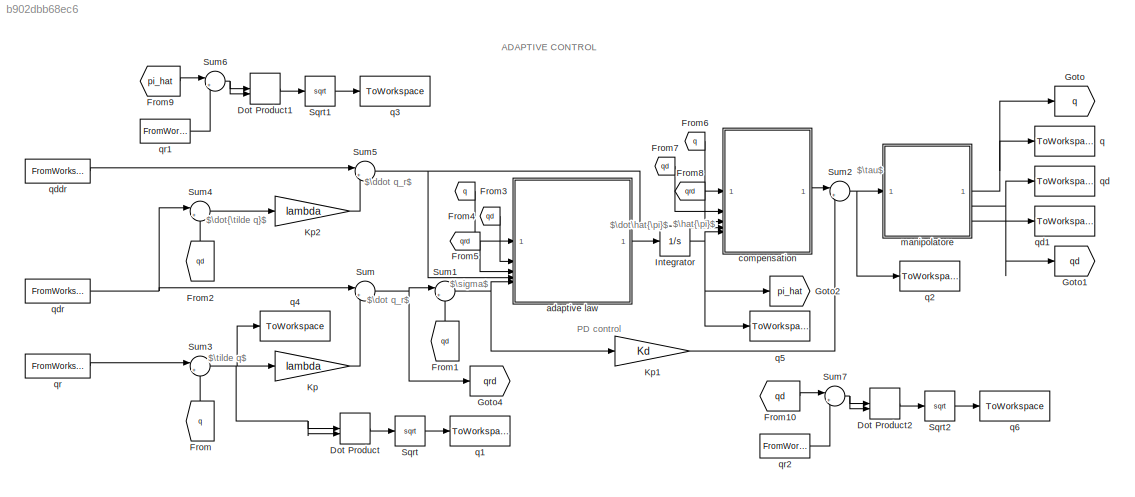
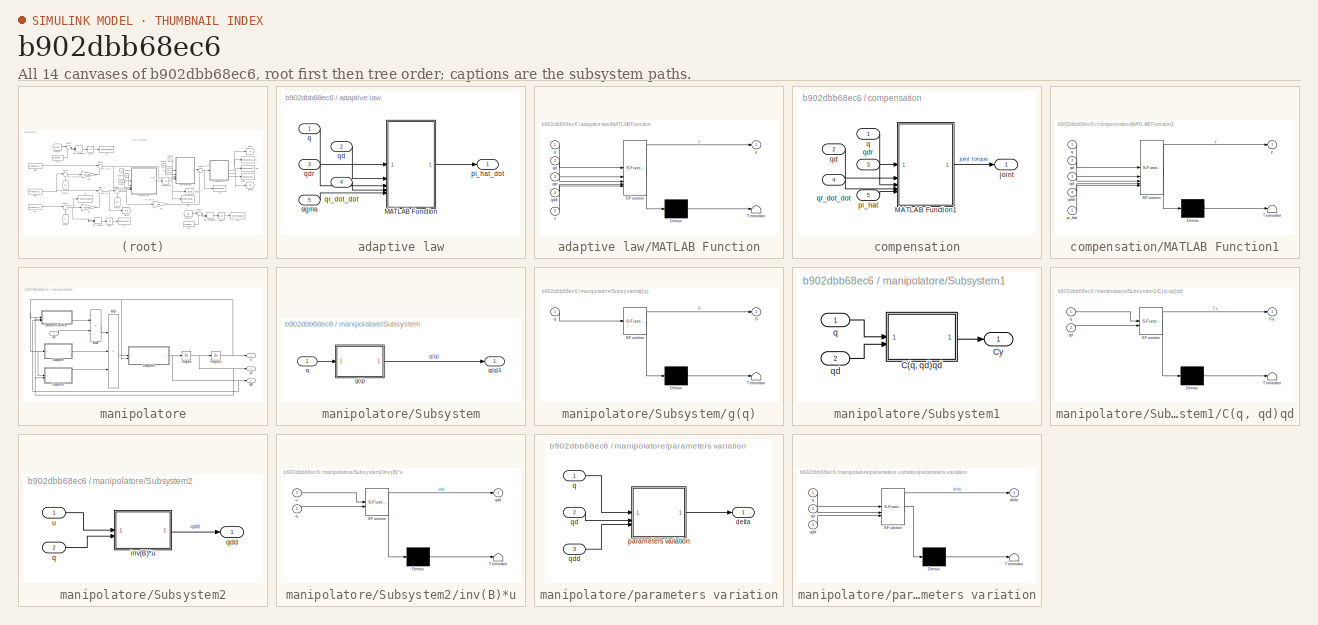
[diagram: thumbnail index - all 14 canvases of the model, root first then tree order]
MODEL slx_b902dbb68ec6
KIND model
CONFIG AbsTol = auto
CONFIG EnableMultiTasking = on
CONFIG FixedStep = 0.001
CONFIG MaxStep = auto
CONFIG MinStep = auto
CONFIG RelTol = 1e-3
CONFIG SampleTimeConstraint = Unconstrained
CONFIG SolverName = VariableStepAuto
CONFIG StartTime = 0.0
CONFIG StopTime = Tf
BLOCK [DotProduct] Dot Product
  OutDataTypeStr = Inherit: Inherit via internal rule
BLOCK [DotProduct] Dot Product1
  OutDataTypeStr = Inherit: Inherit via internal rule
BLOCK [DotProduct] Dot Product2
  OutDataTypeStr = Inherit: Inherit via internal rule
BLOCK [From] From
  GotoTag = q
  NameLocation = right
  TagVisibility = global
BLOCK [From] From1
  GotoTag = qd
  NameLocation = right
  TagVisibility = global
BLOCK [From] From10
  GotoTag = qd
  TagVisibility = global
BLOCK [From] From2
  GotoTag = qd
  NameLocation = right
  TagVisibility = global
BLOCK [From] From3
  GotoTag = q
  TagVisibility = global
BLOCK [From] From4
  GotoTag = qd
  TagVisibility = global
BLOCK [From] From5
  GotoTag = qrd
BLOCK [From] From6
  GotoTag = q
  TagVisibility = global
BLOCK [From] From7
  GotoTag = qd
  TagVisibility = global
BLOCK [From] From8
  GotoTag = qrd
BLOCK [From] From9
  GotoTag = pi_hat
  TagVisibility = global
BLOCK [Goto] Goto
  GotoTag = q
  TagVisibility = global
BLOCK [Goto] Goto1
  GotoTag = qd
  TagVisibility = global
BLOCK [Goto] Goto2
  GotoTag = pi_hat
  TagVisibility = global
BLOCK [Goto] Goto4
  GotoTag = qrd
BLOCK [Integrator] Integrator
  InitialCondition = pi
BLOCK [Gain] Kp
  Gain = lambda
  Multiplication = Matrix(K*u)
BLOCK [Gain] Kp1
  Gain = Kd
  Multiplication = Matrix(K*u)
BLOCK [Gain] Kp2
  Gain = lambda
  Multiplication = Matrix(K*u)
BLOCK [Sqrt] Sqrt
BLOCK [Sqrt] Sqrt1
BLOCK [Sqrt] Sqrt2
BLOCK [Sum] Sum
  Inputs = |++
BLOCK [Sum] Sum1
  Inputs = |+-
BLOCK [Sum] Sum2
  Inputs = |++
BLOCK [Sum] Sum3
  Inputs = |+-
BLOCK [Sum] Sum4
  Inputs = |+-
BLOCK [Sum] Sum5
  Inputs = |++
BLOCK [Sum] Sum6
  Inputs = |+-
BLOCK [Sum] Sum7
  Inputs = |+-
BLOCK [SubSystem] adaptive law
  ShowPortLabels = none
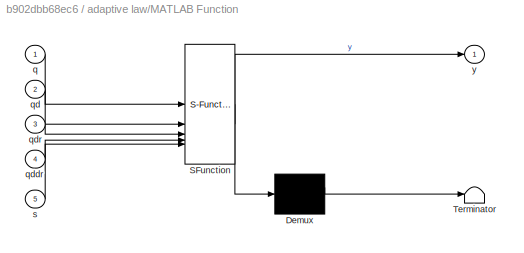
BLOCK [SubSystem] adaptive law/MATLAB Function
  ErrorFcn = Stateflow.Translate.translate
  PermitHierarchicalResolution = ExplicitOnly
  SFBlockType = MATLAB Function
  TreatAsAtomicUnit = on
BLOCK [Demux] adaptive law/MATLAB Function/ Demux 
  Outputs = 1
BLOCK [S-Function] adaptive law/MATLAB Function/ SFunction 
  EnableBusSupport = off
  FunctionName = sf_sfun
  Parameters = Kpi,a1,a2,kr1,kr2
  PortCounts = [5 2]
  SFcnIsStateOwnerBlock = off
  SFunctionDeploymentMode = off
  Tag = Stateflow S-Function 2
BLOCK [Terminator] adaptive law/MATLAB Function/ Terminator 
BLOCK [Inport] adaptive law/MATLAB Function/q
BLOCK [Inport] adaptive law/MATLAB Function/qd
  Port = 2
BLOCK [Inport] adaptive law/MATLAB Function/qddr
  Port = 4
BLOCK [Inport] adaptive law/MATLAB Function/qdr
  Port = 3
BLOCK [Inport] adaptive law/MATLAB Function/s
  Port = 5
BLOCK [Outport] adaptive law/MATLAB Function/y
BLOCK [Outport] adaptive law/pi_hat_dot
BLOCK [Inport] adaptive law/q
BLOCK [Inport] adaptive law/qd
  Port = 2
BLOCK [Inport] adaptive law/qdr
  Port = 3
BLOCK [Inport] adaptive law/qr_dot_dot
  Port = 4
BLOCK [Inport] adaptive law/sigma
  Port = 5
BLOCK [SubSystem] compensation
  ShowPortLabels = none
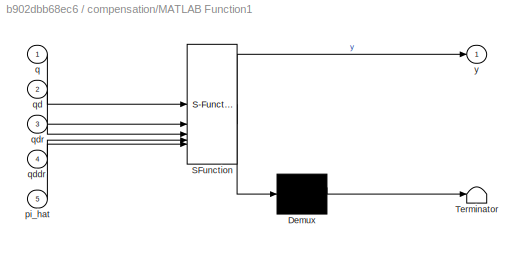
BLOCK [SubSystem] compensation/MATLAB Function1
  ErrorFcn = Stateflow.Translate.translate
  PermitHierarchicalResolution = ExplicitOnly
  SFBlockType = MATLAB Function
  TreatAsAtomicUnit = on
BLOCK [Demux] compensation/MATLAB Function1/ Demux 
  Outputs = 1
BLOCK [S-Function] compensation/MATLAB Function1/ SFunction 
  EnableBusSupport = off
  FunctionName = sf_sfun
  Parameters = a1,a2,kr1,kr2
  PortCounts = [5 2]
  SFcnIsStateOwnerBlock = off
  SFunctionDeploymentMode = off
  Tag = Stateflow S-Function 1
BLOCK [Terminator] compensation/MATLAB Function1/ Terminator 
BLOCK [Inport] compensation/MATLAB Function1/pi_hat
  Port = 5
BLOCK [Inport] compensation/MATLAB Function1/q
BLOCK [Inport] compensation/MATLAB Function1/qd
  Port = 2
BLOCK [Inport] compensation/MATLAB Function1/qddr
  Port = 4
BLOCK [Inport] compensation/MATLAB Function1/qdr
  Port = 3
BLOCK [Outport] compensation/MATLAB Function1/y
BLOCK [Outport] compensation/joint
BLOCK [Inport] compensation/pi_hat
  Port = 5
BLOCK [Inport] compensation/q
BLOCK [Inport] compensation/qd
  Port = 2
BLOCK [Inport] compensation/qdr
  Port = 3
BLOCK [Inport] compensation/qr_dot_dot
  Port = 4
BLOCK [SubSystem] manipolatore
  ShowPortLabels = none
BLOCK [Sum] manipolatore/Add
  IconShape = rectangular
  Inputs = +--
BLOCK [Sum] manipolatore/Add1
  IconShape = rectangular
  Inputs = -+
BLOCK [Integrator] manipolatore/Integrator
  InitialCondition = [0;0]
BLOCK [Integrator] manipolatore/Integrator1
  InitialCondition = qi
BLOCK [SubSystem] manipolatore/Subsystem
  ShowPortLabels = none
BLOCK [SubSystem] manipolatore/Subsystem/g(q)
  ErrorFcn = Stateflow.Translate.translate
  PermitHierarchicalResolution = ExplicitOnly
  SFBlockType = MATLAB Function
  TreatAsAtomicUnit = on
BLOCK [Demux] manipolatore/Subsystem/g(q)/ Demux 
  Outputs = 1
BLOCK [S-Function] manipolatore/Subsystem/g(q)/ SFunction 
  EnableBusSupport = off
  FunctionName = sf_sfun
  PortCounts = [1 2]
  SFcnIsStateOwnerBlock = off
  SFunctionDeploymentMode = off
  Tag = Stateflow S-Function 3
BLOCK [Terminator] manipolatore/Subsystem/g(q)/ Terminator 
BLOCK [Outport] manipolatore/Subsystem/g(q)/G
BLOCK [Inport] manipolatore/Subsystem/g(q)/q
BLOCK [Outport] manipolatore/Subsystem/g(q)1
BLOCK [Inport] manipolatore/Subsystem/q
BLOCK [SubSystem] manipolatore/Subsystem1
  ShowPortLabels = none
BLOCK [SubSystem] manipolatore/Subsystem1/C(q, qd)qd
  ErrorFcn = Stateflow.Translate.translate
  PermitHierarchicalResolution = ExplicitOnly
  SFBlockType = MATLAB Function
  TreatAsAtomicUnit = on
BLOCK [Demux] manipolatore/Subsystem1/C(q, qd)qd/ Demux 
  Outputs = 1
BLOCK [S-Function] manipolatore/Subsystem1/C(q, qd)qd/ SFunction 
  EnableBusSupport = off
  FunctionName = sf_sfun
  PortCounts = [2 2]
  SFcnIsStateOwnerBlock = off
  SFunctionDeploymentMode = off
  Tag = Stateflow S-Function 4
BLOCK [Terminator] manipolatore/Subsystem1/C(q, qd)qd/ Terminator 
BLOCK [Outport] manipolatore/Subsystem1/C(q, qd)qd/Cy
BLOCK [Inport] manipolatore/Subsystem1/C(q, qd)qd/q
BLOCK [Inport] manipolatore/Subsystem1/C(q, qd)qd/qd
  Port = 2
BLOCK [Outport] manipolatore/Subsystem1/Cy
BLOCK [Inport] manipolatore/Subsystem1/q
BLOCK [Inport] manipolatore/Subsystem1/qd
  Port = 2
BLOCK [SubSystem] manipolatore/Subsystem2
  ShowPortLabels = none
BLOCK [SubSystem] manipolatore/Subsystem2/inv(B)*u
  ErrorFcn = Stateflow.Translate.translate
  PermitHierarchicalResolution = ExplicitOnly
  SFBlockType = MATLAB Function
  TreatAsAtomicUnit = on
BLOCK [Demux] manipolatore/Subsystem2/inv(B)*u/ Demux 
  Outputs = 1
BLOCK [S-Function] manipolatore/Subsystem2/inv(B)*u/ SFunction 
  EnableBusSupport = off
  FunctionName = sf_sfun
  PortCounts = [2 2]
  SFcnIsStateOwnerBlock = off
  SFunctionDeploymentMode = off
  Tag = Stateflow S-Function 6
BLOCK [Terminator] manipolatore/Subsystem2/inv(B)*u/ Terminator 
BLOCK [Inport] manipolatore/Subsystem2/inv(B)*u/q
  Port = 2
BLOCK [Outport] manipolatore/Subsystem2/inv(B)*u/qdd
BLOCK [Inport] manipolatore/Subsystem2/inv(B)*u/u
BLOCK [Inport] manipolatore/Subsystem2/q
  Port = 2
BLOCK [Outport] manipolatore/Subsystem2/qdd
BLOCK [Inport] manipolatore/Subsystem2/u
BLOCK [SubSystem] manipolatore/parameters variation
  ShowPortLabels = none
BLOCK [Outport] manipolatore/parameters variation/delta
BLOCK [SubSystem] manipolatore/parameters variation/parameters variation
  ErrorFcn = Stateflow.Translate.translate
  PermitHierarchicalResolution = ExplicitOnly
  SFBlockType = MATLAB Function
  TreatAsAtomicUnit = on
BLOCK [Demux] manipolatore/parameters variation/parameters variation/ Demux 
  Outputs = 1
BLOCK [S-Function] manipolatore/parameters variation/parameters variation/ SFunction 
  EnableBusSupport = off
  FunctionName = sf_sfun
  Parameters = a1,a2,delta_I2hat,delta_m2,delta_m2lc2
  PortCounts = [3 2]
  SFcnIsStateOwnerBlock = off
  SFunctionDeploymentMode = off
  Tag = Stateflow S-Function 9
BLOCK [Terminator] manipolatore/parameters variation/parameters variation/ Terminator 
BLOCK [Outport] manipolatore/parameters variation/parameters variation/delta
BLOCK [Inport] manipolatore/parameters variation/parameters variation/q
BLOCK [Inport] manipolatore/parameters variation/parameters variation/qd
  Port = 2
BLOCK [Inport] manipolatore/parameters variation/parameters variation/qdd
  Port = 3
BLOCK [Inport] manipolatore/parameters variation/q
BLOCK [Inport] manipolatore/parameters variation/qd
  Port = 2
BLOCK [Inport] manipolatore/parameters variation/qdd
  Port = 3
BLOCK [Outport] manipolatore/q
BLOCK [Outport] manipolatore/qd
  Port = 2
BLOCK [Outport] manipolatore/qdd
  Port = 3
BLOCK [Inport] manipolatore/tau
BLOCK [ToWorkspace] q
  FixptAsFi = on
  MaxDataPoints = inf
  SampleTime = Tc
  VariableName = q
BLOCK [ToWorkspace] q1
  FixptAsFi = on
  MaxDataPoints = inf
  SampleTime = Tc
  VariableName = pos_err_norm
BLOCK [ToWorkspace] q2
  FixptAsFi = on
  MaxDataPoints = inf
  SampleTime = Tc
  VariableName = tau
BLOCK [ToWorkspace] q3
  FixptAsFi = on
  MaxDataPoints = inf
  SampleTime = Tc
  VariableName = param_err_norm
BLOCK [ToWorkspace] q4
  FixptAsFi = on
  MaxDataPoints = inf
  SampleTime = Tc
  VariableName = q_tilde
BLOCK [ToWorkspace] q5
  FixptAsFi = on
  MaxDataPoints = inf
  SampleTime = Tc
  VariableName = pi_hat
BLOCK [ToWorkspace] q6
  FixptAsFi = on
  MaxDataPoints = inf
  SampleTime = Tc
  VariableName = vel_err_norm
BLOCK [ToWorkspace] qd
  FixptAsFi = on
  MaxDataPoints = inf
  SampleTime = Tc
  VariableName = qd
BLOCK [ToWorkspace] qd1
  FixptAsFi = on
  MaxDataPoints = inf
  SampleTime = Tc
  VariableName = qdd
BLOCK [FromWorkspace] qddr
  SampleTime = Tc
  VariableName = qddref
BLOCK [FromWorkspace] qdr
  SampleTime = Tc
  VariableName = qdref
BLOCK [FromWorkspace] qr
  SampleTime = Tc
  VariableName = qref
BLOCK [FromWorkspace] qr1
  SampleTime = Tc
  VariableName = pi_t
BLOCK [FromWorkspace] qr2
  SampleTime = Tc
  VariableName = qdref
ANNOTATION (root): ADAPTIVE CONTROL
ANNOTATION (root): $\ddot q_r$
ANNOTATION (root): $\dot q_r$
ANNOTATION (root): $\dot\hat{\pi}$
ANNOTATION (root): $\dot{\tilde q}$
ANNOTATION (root): $\hat{\pi}$
ANNOTATION (root): $\sigma$
ANNOTATION (root): $\tau$
ANNOTATION (root): $\tilde q$
ANNOTATION (root): PD control
LINE Dot Product1:1 -> Sqrt1:1
LINE Dot Product2:1 -> Sqrt2:1
LINE Dot Product:1 -> Sqrt:1
LINE From10:1 -> Sum7:1
LINE From1:1 -> Sum1:2
LINE From2:1 -> Sum4:2
LINE From3:1 -> adaptive law:1
LINE From4:1 -> adaptive law:2
LINE From5:1 -> adaptive law:3
LINE From6:1 -> compensation:1
LINE From7:1 -> compensation:2
LINE From8:1 -> compensation:3
LINE From9:1 -> Sum6:1
LINE From:1 -> Sum3:2
NET Integrator:1 -> Goto2:1, compensation:5, q5:1
LINE Kp1:1 -> Sum2:2
LINE Kp2:1 -> Sum5:2
LINE Kp:1 -> Sum:2
LINE Sqrt1:1 -> q3:1
LINE Sqrt2:1 -> q6:1
LINE Sqrt:1 -> q1:1
NET Sum1:1 -> Kp1:1, adaptive law:5
NET Sum2:1 -> manipolatore:1, q2:1
NET Sum3:1 -> Dot Product:1, Dot Product:2, Kp:1, q4:1
LINE Sum4:1 -> Kp2:1
NET Sum5:1 -> adaptive law:4, compensation:4
NET Sum6:1 -> Dot Product1:1, Dot Product1:2
NET Sum7:1 -> Dot Product2:1, Dot Product2:2
NET Sum:1 -> Goto4:1, Sum1:1
LINE adaptive law/MATLAB Function:1 -> adaptive law/pi_hat_dot:1
LINE adaptive law/q:1 -> adaptive law/MATLAB Function:1
LINE adaptive law/qd:1 -> adaptive law/MATLAB Function:2
LINE adaptive law/qdr:1 -> adaptive law/MATLAB Function:3
LINE adaptive law/qr_dot_dot:1 -> adaptive law/MATLAB Function:4
LINE adaptive law/sigma:1 -> adaptive law/MATLAB Function:5
LINE adaptive law:1 -> Integrator:1
LINE compensation/MATLAB Function1:1 -> compensation/joint:1
LINE compensation/pi_hat:1 -> compensation/MATLAB Function1:5
LINE compensation/q:1 -> compensation/MATLAB Function1:1
LINE compensation/qd:1 -> compensation/MATLAB Function1:2
LINE compensation/qdr:1 -> compensation/MATLAB Function1:3
LINE compensation/qr_dot_dot:1 -> compensation/MATLAB Function1:4
LINE compensation:1 -> Sum2:1
LINE manipolatore/Add1:1 -> manipolatore/Add:1
LINE manipolatore/Add:1 -> manipolatore/Subsystem2:1
NET manipolatore/Integrator1:1 -> manipolatore/Subsystem1:1, manipolatore/Subsystem2:2, manipolatore/Subsystem:1, manipolatore/parameters variation:1, manipolatore/q:1
NET manipolatore/Integrator:1 -> manipolatore/Integrator1:1, manipolatore/Subsystem1:2, manipolatore/parameters variation:2, manipolatore/qd:1
LINE manipolatore/Subsystem/g(q):1 -> manipolatore/Subsystem/g(q)1:1
LINE manipolatore/Subsystem/q:1 -> manipolatore/Subsystem/g(q):1
LINE manipolatore/Subsystem1/C(q, qd)qd:1 -> manipolatore/Subsystem1/Cy:1
LINE manipolatore/Subsystem1/q:1 -> manipolatore/Subsystem1/C(q, qd)qd:1
LINE manipolatore/Subsystem1/qd:1 -> manipolatore/Subsystem1/C(q, qd)qd:2
LINE manipolatore/Subsystem1:1 -> manipolatore/Add:3
LINE manipolatore/Subsystem2/inv(B)*u:1 -> manipolatore/Subsystem2/qdd:1
LINE manipolatore/Subsystem2/q:1 -> manipolatore/Subsystem2/inv(B)*u:2
LINE manipolatore/Subsystem2/u:1 -> manipolatore/Subsystem2/inv(B)*u:1
NET manipolatore/Subsystem2:1 -> manipolatore/Integrator:1, manipolatore/parameters variation:3, manipolatore/qdd:1
LINE manipolatore/Subsystem:1 -> manipolatore/Add:2
LINE manipolatore/parameters variation/parameters variation:1 -> manipolatore/parameters variation/delta:1
LINE manipolatore/parameters variation/q:1 -> manipolatore/parameters variation/parameters variation:1
LINE manipolatore/parameters variation/qd:1 -> manipolatore/parameters variation/parameters variation:2
LINE manipolatore/parameters variation/qdd:1 -> manipolatore/parameters variation/parameters variation:3
LINE manipolatore/parameters variation:1 -> manipolatore/Add1:1
LINE manipolatore/tau:1 -> manipolatore/Add1:2
NET manipolatore:1 -> Goto:1, q:1
NET manipolatore:2 -> Goto1:1, qd:1
LINE manipolatore:3 -> qd1:1
LINE qddr:1 -> Sum5:1
NET qdr:1 -> Sum4:1, Sum:1
LINE qr1:1 -> Sum6:2
LINE qr2:1 -> Sum7:2
LINE qr:1 -> Sum3:1
note: NET lines group one-source signal fan-out (src -> all destinations, sorted); 1:1 wires keep LINE
CHART compensation/MATLAB Function1 states=1 transitions=1
  STATE_LABEL 'eML_blk_kernel()'
  STATE_LABEL 'SCRIPT:\nfunction y = fcn(q, qd, qdr, qddr, pi_hat, a1, kr2, kr1, a2)\n\n    teta1 = q(1); teta2 = q(2); teta1d = qd(1); teta1dr = qdr(1);\n    teta2d = qd(2); teta2dr = qdr(2); teta1ddr = qddr(1); teta2ddr = qddr(2);\n    c1 = cos(teta1); c2 = cos(teta2); s2 = sin(teta2);\n    c12 = cos(teta1 + teta2); g = 9.81;\n\n    y11 = a1^2 * teta1ddr + a1 * g * c1;\n    y12 = 2 * a1 * teta1ddr + g * c1;\n    y13 = t...<+1031ch>'
CHART adaptive law/MATLAB Function states=1 transitions=1
  STATE_LABEL 'eML_blk_kernel()'
  STATE_LABEL 'SCRIPT:\nfunction y  = fcn(q, qd, qdr, qddr, s, Kpi, a1, kr2, kr1, a2)\n\n    teta1 = q(1); teta2 = q(2); teta1d = qd(1); teta1dr = qdr(1);\n    teta2d = qd(2); teta2dr = qdr(2); teta1ddr = qddr(1); teta2ddr = qddr(2);\n    c1 = cos(teta1); c2 = cos(teta2); s2 = sin(teta2);\n    c12 = cos(teta1 + teta2); g = 9.81;\n\n    y11 = a1^2 * teta1ddr + a1 * g * c1;\n    y12 = 2 * a1 * teta1ddr + g * c1;\n    y13 = ...<+1037ch>'
CHART manipolatore/Subsystem/g(q) states=1 transitions=1
  STATE_LABEL 'eML_blk_kernel()'
  STATE_LABEL 'SCRIPT:\nfunction G = fcn(q)\n    \n    a1 = 1; l1 = 0.5; l2 = 0.5; ml1 = 50; ml2 = 50; mm2 = 5; g = 9.81; \n    teta1 = q(1); teta2 = q(2); c1 = cos(teta1); c12 = cos(teta1 + teta2);\n\n    g1 = (ml1 * l1 + mm2 * a1 + ml2 * a1) * g * c1 + ml2 * l2 * g * c12;\n    g2 = ml2 * l2 * g * c12;\n    G = [g1;\n         g2];\nend'
CHART manipolatore/Subsystem1/C(q, qd)qd states=1 transitions=1
  STATE_LABEL 'eML_blk_kernel()'
  STATE_LABEL 'SCRIPT:\nfunction Cy = fcn(q, qd)\n    a1 = 1; l2 = 0.5; ml2 = 50; \n    teta2 = q(2); teta1d = qd(1); teta2d = qd(2); s2 = sin(teta2); \n\n    h = -ml2 * a1 * l2 * s2;\n    C = [h*teta2d h*(teta1d+teta2d); -h*teta1d 0];\n    Cy = C * qd;\nend'
CHART manipolatore/Subsystem2/inv(B)*u states=1 transitions=1
  STATE_LABEL 'eML_blk_kernel()'
  STATE_LABEL 'SCRIPT:\nfunction qdd = fcn(u, q)\n    a1 = 1; l1 = 0.5; l2 = 0.5; ml1 = 50; ml2 = 50; Il1 = 10; Il2 = 10; \n    kr1 = 100; kr2 = 100; mm2 = 5; Im1 = 0.01; Im2 = 0.01;\n\n    teta2 = q(2); c2 = cos(teta2); \n\n    b11 = Il1 + ml1 * l1^2 + kr1^2 * Im1 + Il2 + ...\n          ml2 * (a1^2 + l2^2 + 2 * a1 * l2 *c2) + Im2 + mm2 * a1^2;\n    b12 = Il2 + ml2 * (l2^2 + a1 * l2 * c2) + kr2 * Im2;\n    b21 = b12;\n    ...<+87ch>'
CHART manipolatore/parameters variation/parameters
variation states=1 transitions=1
  STATE_LABEL 'eML_blk_kernel()'
  STATE_LABEL 'SCRIPT:\nfunction delta = fcn(q, qd, qdd, a1, a2, delta_m2, delta_m2lc2, delta_I2hat)\n    teta1 = q(1); teta2 = q(2); teta1d = qd(1); \n    teta2d = qd(2); teta1dd = qdd(1); teta2dd = qdd(2);\n    c1 = cos(teta1); c2 = cos(teta2); s2 = sin(teta2);\n    c12 = cos(teta1 + teta2); g = 9.81;\n\n    y15 = (a1^2 + 2 * a1 * a2 * c2 + a2^2) * teta1dd + ...\n          (a1 * a2 * c2 + a2^2) * teta2dd - ...\n       ...<+725ch>'
CHART  states=0 transitions=0
CHART  states=0 transitions=0
CHART  states=0 transitions=0
CHART  states=0 transitions=0
CHART  states=0 transitions=0
CHART  states=0 transitions=0
